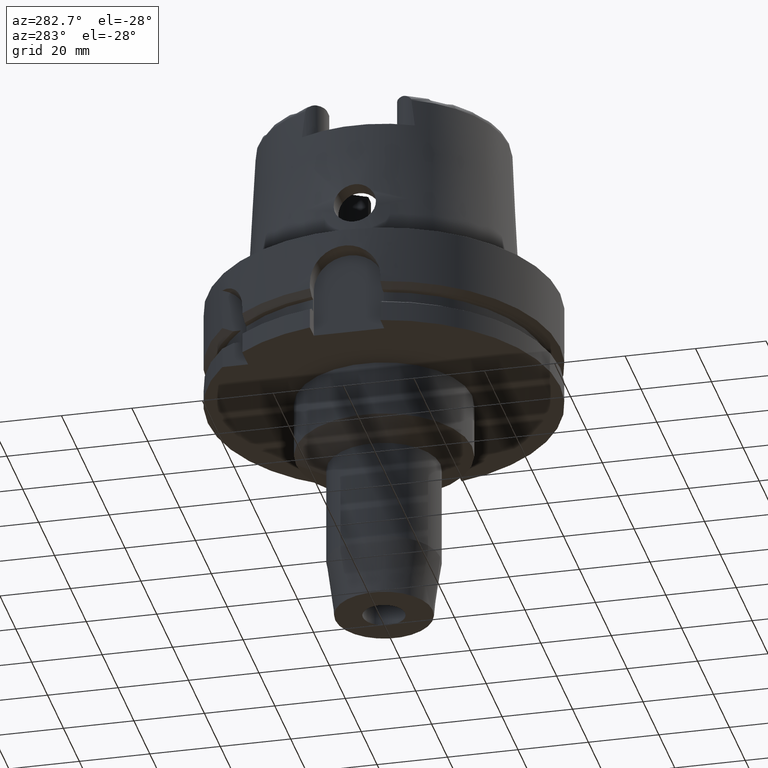
[diagram: clean part render]
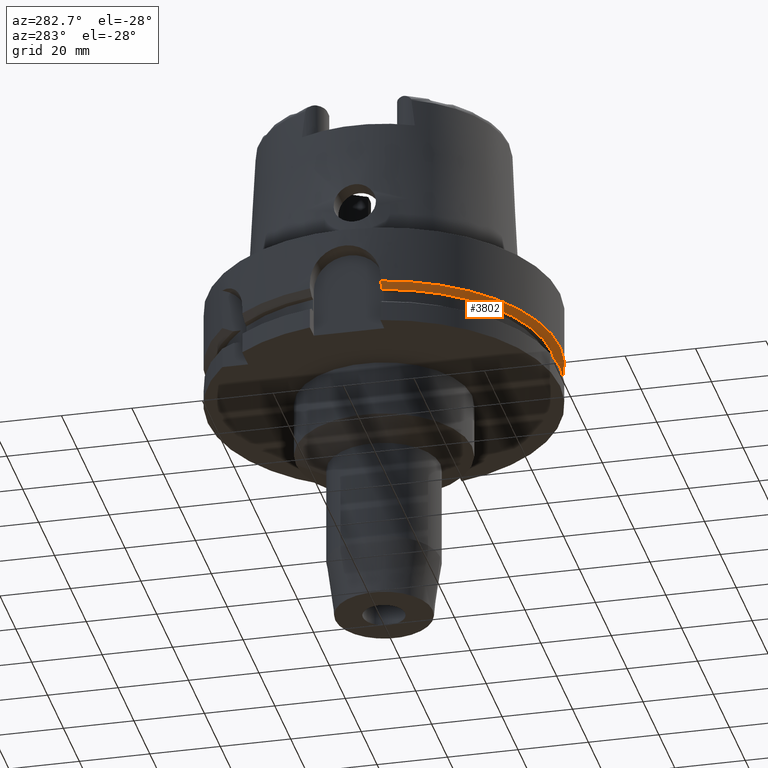
[diagram: same view with one face highlighted and labeled with its STEP entity id]
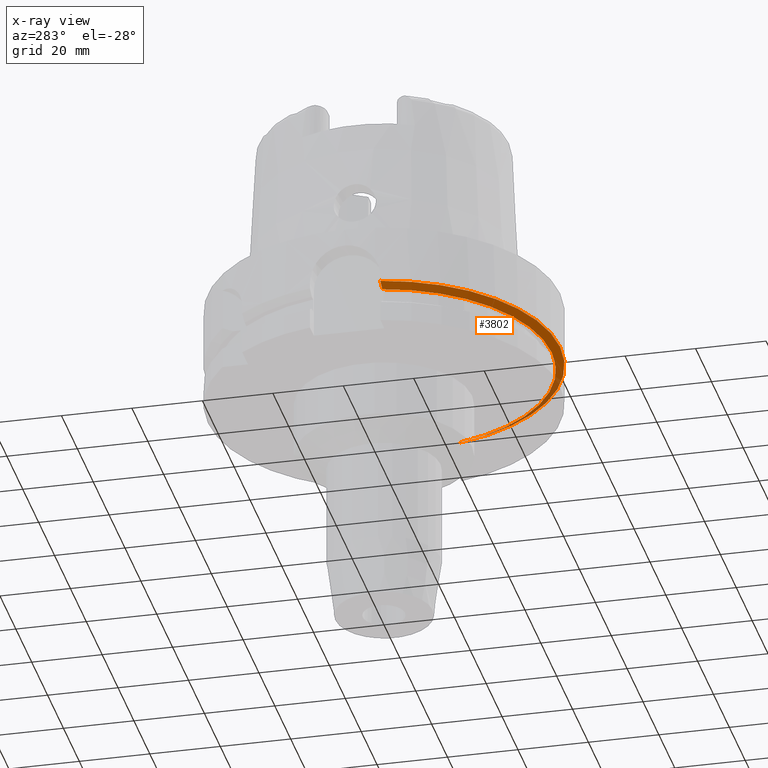
[diagram: x-ray of the same camera — body ghosted, the highlighted face saturated]
A machine part, auxiliary view. The second image highlights one B-rep face of the part: STEP entity #3802.
The next image is the same camera in x-ray: the body ghosted, the highlighted face saturated — about 12% of this face is hidden behind the body in this view.
In plain terms, the highlighted conical surface has half-angle 60 deg.
Its self-contained STEP definition (entity closure, byte-faithful):
#1754=CARTESIAN_POINT('',(-4.656083740330E1,-1.E1,-1.8125E1));
#1755=CARTESIAN_POINT('',(-4.683084020607E1,-1.E1,-1.797258933137E1));
#1756=CARTESIAN_POINT('',(-4.737076227628E1,-1.E1,-1.766769351207E1));
#1757=CARTESIAN_POINT('',(-4.818041161677E1,-1.E1,-1.721015586611E1));
#1758=CARTESIAN_POINT('',(-4.872002593967E1,-1.E1,-1.690500907969E1));
#1759=CARTESIAN_POINT('',(-4.898979485566E1,-1.E1,-1.675240473581E1));
#1764=CARTESIAN_POINT('',(0.E0,0.E0,-1.675240473581E1));
#1765=DIRECTION('',(0.E0,0.E0,1.E0));
#1766=DIRECTION('',(-9.797958971133E-1,-2.E-1,0.E0));
#1767=AXIS2_PLACEMENT_3D('',#1764,#1765,#1766);
#1772=CARTESIAN_POINT('',(0.E0,0.E0,-1.675240473581E1));
#1773=DIRECTION('',(0.E0,0.E0,1.E0));
#1774=DIRECTION('',(0.E0,-1.E0,0.E0));
#1775=AXIS2_PLACEMENT_3D('',#1772,#1773,#1774);
#1780=CARTESIAN_POINT('',(4.877499359303E1,-1.1E1,-1.675240473581E1));
#1781=CARTESIAN_POINT('',(4.850399904748E1,-1.1E1,-1.690503024962E1));
#1782=CARTESIAN_POINT('',(4.796191616323E1,-1.1E1,-1.721020456770E1));
#1783=CARTESIAN_POINT('',(4.714851446810E1,-1.1E1,-1.766774350267E1));
#1784=CARTESIAN_POINT('',(4.660605711265E1,-1.1E1,-1.797261191789E1));
#1785=CARTESIAN_POINT('',(4.633477721644E1,-1.1E1,-1.8125E1));
#1797=CARTESIAN_POINT('',(0.E0,0.E0,-1.8125E1));
#1798=DIRECTION('',(0.E0,0.E0,1.E0));
#1799=DIRECTION('',(-9.777047459300E-1,-2.099843560504E-1,0.E0));
#1800=AXIS2_PLACEMENT_3D('',#1797,#1798,#1799);
#1805=CARTESIAN_POINT('',(0.E0,0.E0,-1.8125E1));
#1806=DIRECTION('',(0.E0,0.E0,1.E0));
#1807=DIRECTION('',(0.E0,-1.E0,0.E0));
#1808=AXIS2_PLACEMENT_3D('',#1805,#1806,#1807);
#2407=CARTESIAN_POINT('',(-4.898979485566E1,-1.E1,-1.675240473581E1));
#2408=VERTEX_POINT('',#2407);
#2409=VERTEX_POINT('',#1754);
#2458=CARTESIAN_POINT('',(-1.598721155460E-14,-4.762259526419E1,-1.8125E1));
#2459=CARTESIAN_POINT('',(4.633477721644E1,-1.1E1,-1.8125E1));
#2460=VERTEX_POINT('',#2458);
#2461=VERTEX_POINT('',#2459);
#2468=CARTESIAN_POINT('',(0.E0,-5.E1,-1.675240473581E1));
#2469=VERTEX_POINT('',#2468);
#2470=CARTESIAN_POINT('',(4.877499359303E1,-1.1E1,-1.675240473581E1));
#2471=VERTEX_POINT('',#2470);
#3787=CARTESIAN_POINT('',(0.E0,0.E0,-1.743870236790E1));
#3788=DIRECTION('',(0.E0,0.E0,1.E0));
#3789=DIRECTION('',(0.E0,1.E0,0.E0));
#3790=AXIS2_PLACEMENT_3D('',#3787,#3788,#3789);
#3791=CONICAL_SURFACE('',#3790,4.881129763209E1,6.E1);
#3792=ORIENTED_EDGE('',*,*,#3513,.T.);
#3793=ORIENTED_EDGE('',*,*,#3634,.T.);
#3794=ORIENTED_EDGE('',*,*,#3736,.T.);
#3795=ORIENTED_EDGE('',*,*,#3474,.T.);
#3797=ORIENTED_EDGE('',*,*,#3796,.F.);
#3799=ORIENTED_EDGE('',*,*,#3798,.F.);
#3800=EDGE_LOOP('',(#3792,#3793,#3794,#3795,#3797,#3799));
#3801=FACE_OUTER_BOUND('',#3800,.F.);
#1760=B_SPLINE_CURVE_WITH_KNOTS('',3,(#1754,#1755,#1756,#1757,#1758,#1759),
.UNSPECIFIED.,.F.,.F.,(4,1,1,4),(0.E0,3.333333333333E-1,6.666666666667E-1,1.E0),
.UNSPECIFIED.);
#1768=CIRCLE('',#1767,5.E1);
#1776=CIRCLE('',#1775,5.E1);
#1786=B_SPLINE_CURVE_WITH_KNOTS('',3,(#1780,#1781,#1782,#1783,#1784,#1785),
.UNSPECIFIED.,.F.,.F.,(4,1,1,4),(0.E0,3.333333333333E-1,6.666666666667E-1,1.E0),
.UNSPECIFIED.);
#1801=CIRCLE('',#1800,4.762259526419E1);
#1809=CIRCLE('',#1808,4.762259526419E1);
#3474=EDGE_CURVE('',#2471,#2461,#1786,.T.);
#3513=EDGE_CURVE('',#2409,#2408,#1760,.T.);
#3634=EDGE_CURVE('',#2408,#2469,#1768,.T.);
#3736=EDGE_CURVE('',#2469,#2471,#1776,.T.);
#3796=EDGE_CURVE('',#2460,#2461,#1809,.T.);
#3798=EDGE_CURVE('',#2409,#2460,#1801,.T.);
#3802=ADVANCED_FACE('',(#3801),#3791,.T.);